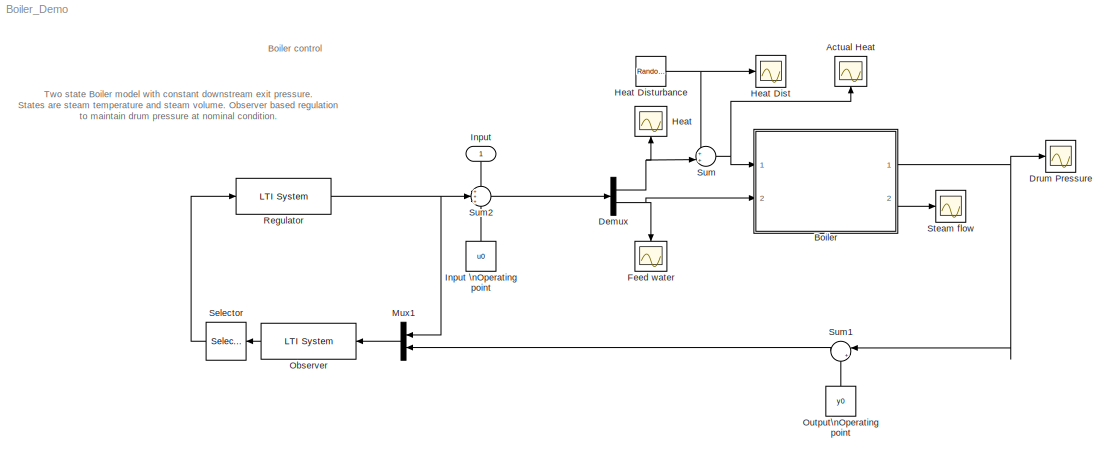
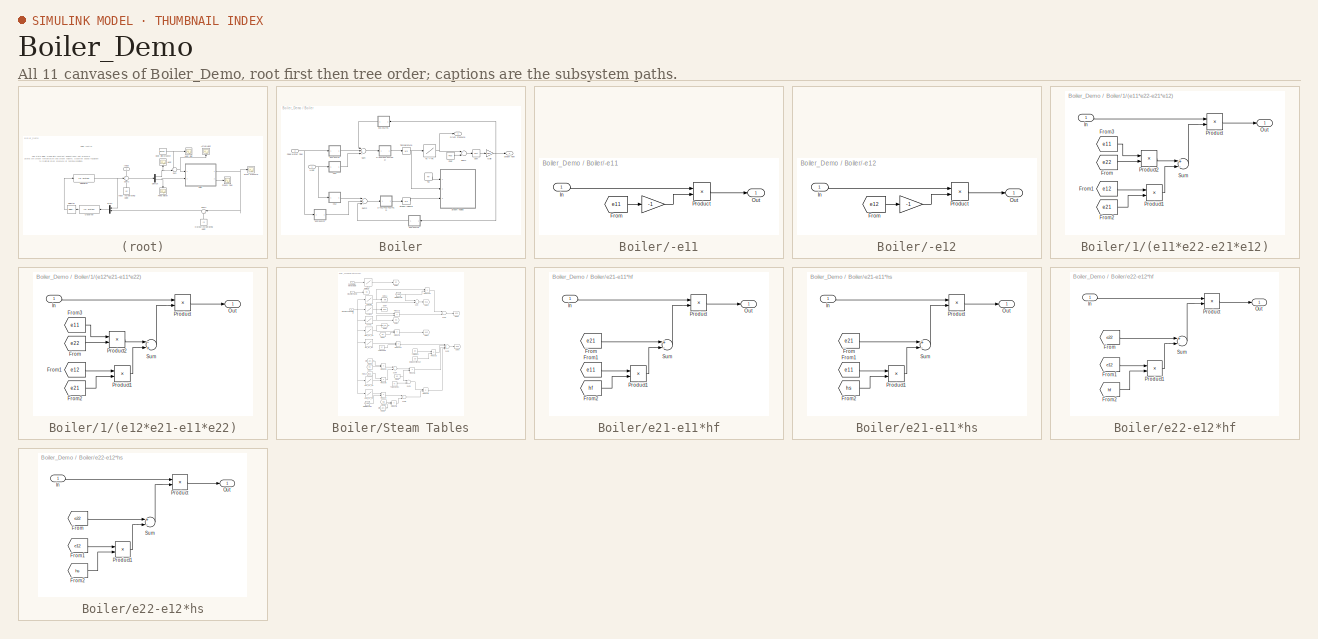
[diagram: thumbnail index - all 11 canvases of the model, root first then tree order]
MODEL Boiler_Demo
KIND model
CONFIG PreLoadFcn = u0 = zeros(2,1);\ny0 = zeros(1,1);\nK = tf( {0;0}, 1);\nKobsv = ss(eye(2),zeros(2,3),zeros(2,2),zeros(2,3));
BLOCK [Scope] Actual Heat
  DataFormat = StructureWithTime
  LimitDataPoints = off
  NumInputPorts = 1
  Ports = [1]
  SaveName = ActualHeat
  SaveToWorkspace = on
  TimeRange = 4000
  YMax = 240800
  YMin = 240200
  ZoomMode = yonly
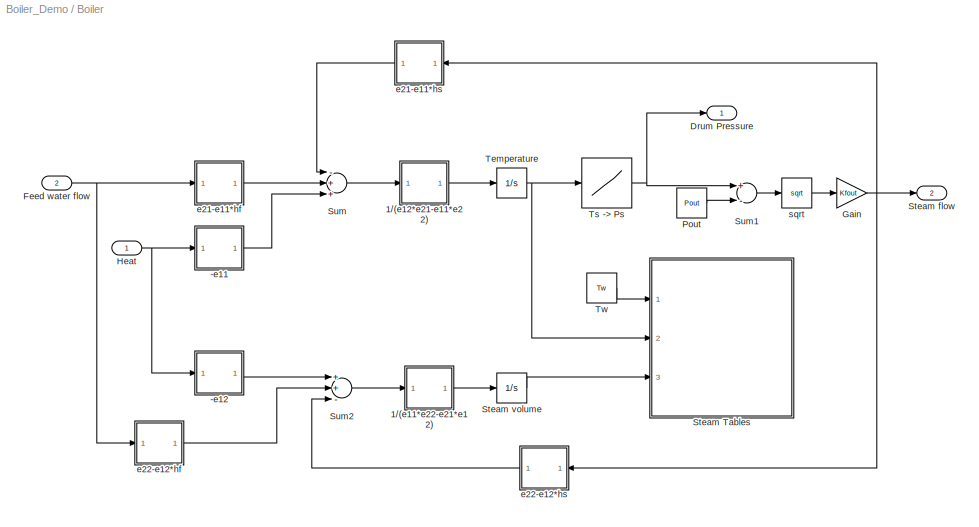
BLOCK [SubSystem] Boiler
  MinAlgLoopOccurrences = off
  Ports = [2, 2]
  PropExecContextAcrossSSBoundary = on
  RTWSystemCode = Auto
  TreatAsAtomicUnit = off
BLOCK [SubSystem] Boiler/-e11
  MinAlgLoopOccurrences = off
  Ports = [1, 1]
  PropExecContextAcrossSSBoundary = on
  RTWSystemCode = Auto
  TreatAsAtomicUnit = off
BLOCK [Gain] Boiler/-e11/ 
  Gain = -1
  OutDataTypeMode = Inherit via internal rule
  ParameterDataTypeMode = Inherit via internal rule
  SaturateOnIntegerOverflow = off
BLOCK [From] Boiler/-e11/From
  CloseFcn = tagdialog Close
  DialogController = Simulink.DDGSource
  GotoTag = e11
BLOCK [Inport] Boiler/-e11/In
  IconDisplay = Port number
  LatchInput = off
BLOCK [Outport] Boiler/-e11/Out
  BusOutputAsStruct = off
  IconDisplay = Port number
BLOCK [Product] Boiler/-e11/Product
  InputSameDT = off
  OutDataTypeMode = Inherit via internal rule
  Ports = [2, 1]
  SaturateOnIntegerOverflow = off
BLOCK [SubSystem] Boiler/-e12
  MinAlgLoopOccurrences = off
  Ports = [1, 1]
  PropExecContextAcrossSSBoundary = on
  RTWSystemCode = Auto
  TreatAsAtomicUnit = off
BLOCK [Gain] Boiler/-e12/ 
  Gain = -1
  OutDataTypeMode = Inherit via internal rule
  ParameterDataTypeMode = Inherit via internal rule
  SaturateOnIntegerOverflow = off
BLOCK [From] Boiler/-e12/From
  CloseFcn = tagdialog Close
  DialogController = Simulink.DDGSource
  GotoTag = e12
BLOCK [Inport] Boiler/-e12/In
  IconDisplay = Port number
  LatchInput = off
BLOCK [Outport] Boiler/-e12/Out
  BusOutputAsStruct = off
  IconDisplay = Port number
BLOCK [Product] Boiler/-e12/Product
  InputSameDT = off
  OutDataTypeMode = Inherit via internal rule
  Ports = [2, 1]
  SaturateOnIntegerOverflow = off
BLOCK [SubSystem] Boiler/1//(e11*e22-e21*e12)
  MinAlgLoopOccurrences = off
  Ports = [1, 1]
  PropExecContextAcrossSSBoundary = on
  RTWSystemCode = Auto
  TreatAsAtomicUnit = off
BLOCK [From] Boiler/1//(e11*e22-e21*e12)/From
  CloseFcn = tagdialog Close
  DialogController = Simulink.DDGSource
  GotoTag = e22
BLOCK [From] Boiler/1//(e11*e22-e21*e12)/From1
  CloseFcn = tagdialog Close
  DialogController = Simulink.DDGSource
  GotoTag = e12
BLOCK [From] Boiler/1//(e11*e22-e21*e12)/From2
  CloseFcn = tagdialog Close
  DialogController = Simulink.DDGSource
  GotoTag = e21
BLOCK [From] Boiler/1//(e11*e22-e21*e12)/From3
  CloseFcn = tagdialog Close
  DialogController = Simulink.DDGSource
  GotoTag = e11
BLOCK [Inport] Boiler/1//(e11*e22-e21*e12)/In
  IconDisplay = Port number
  LatchInput = off
BLOCK [Outport] Boiler/1//(e11*e22-e21*e12)/Out
  BusOutputAsStruct = off
  IconDisplay = Port number
BLOCK [Product] Boiler/1//(e11*e22-e21*e12)/Product
  InputSameDT = off
  Inputs = */
  OutDataTypeMode = Inherit via internal rule
  Ports = [2, 1]
  SaturateOnIntegerOverflow = off
BLOCK [Product] Boiler/1//(e11*e22-e21*e12)/Product1
  InputSameDT = off
  OutDataTypeMode = Inherit via internal rule
  Ports = [2, 1]
  SaturateOnIntegerOverflow = off
BLOCK [Product] Boiler/1//(e11*e22-e21*e12)/Product2
  InputSameDT = off
  OutDataTypeMode = Inherit via internal rule
  Ports = [2, 1]
  SaturateOnIntegerOverflow = off
BLOCK [Sum] Boiler/1//(e11*e22-e21*e12)/Sum
  InputSameDT = off
  Inputs = +-
  OutDataTypeMode = Inherit via internal rule
  Ports = [2, 1]
  SaturateOnIntegerOverflow = off
BLOCK [SubSystem] Boiler/1//(e12*e21-e11*e22)
  MinAlgLoopOccurrences = off
  Ports = [1, 1]
  PropExecContextAcrossSSBoundary = on
  RTWSystemCode = Auto
  TreatAsAtomicUnit = off
BLOCK [From] Boiler/1//(e12*e21-e11*e22)/From
  CloseFcn = tagdialog Close
  DialogController = Simulink.DDGSource
  GotoTag = e22
BLOCK [From] Boiler/1//(e12*e21-e11*e22)/From1
  CloseFcn = tagdialog Close
  DialogController = Simulink.DDGSource
  GotoTag = e12
BLOCK [From] Boiler/1//(e12*e21-e11*e22)/From2
  CloseFcn = tagdialog Close
  DialogController = Simulink.DDGSource
  GotoTag = e21
BLOCK [From] Boiler/1//(e12*e21-e11*e22)/From3
  CloseFcn = tagdialog Close
  DialogController = Simulink.DDGSource
  GotoTag = e11
BLOCK [Inport] Boiler/1//(e12*e21-e11*e22)/In
  IconDisplay = Port number
  LatchInput = off
BLOCK [Outport] Boiler/1//(e12*e21-e11*e22)/Out
  BusOutputAsStruct = off
  IconDisplay = Port number
BLOCK [Product] Boiler/1//(e12*e21-e11*e22)/Product
  InputSameDT = off
  Inputs = */
  OutDataTypeMode = Inherit via internal rule
  Ports = [2, 1]
  SaturateOnIntegerOverflow = off
BLOCK [Product] Boiler/1//(e12*e21-e11*e22)/Product1
  InputSameDT = off
  OutDataTypeMode = Inherit via internal rule
  Ports = [2, 1]
  SaturateOnIntegerOverflow = off
BLOCK [Product] Boiler/1//(e12*e21-e11*e22)/Product2
  InputSameDT = off
  OutDataTypeMode = Inherit via internal rule
  Ports = [2, 1]
  SaturateOnIntegerOverflow = off
BLOCK [Sum] Boiler/1//(e12*e21-e11*e22)/Sum
  InputSameDT = off
  Inputs = -+
  OutDataTypeMode = Inherit via internal rule
  Ports = [2, 1]
  SaturateOnIntegerOverflow = off
BLOCK [Outport] Boiler/Drum Pressure
  BusOutputAsStruct = off
  IconDisplay = Port number
  PortDimensions = 1
BLOCK [Inport] Boiler/Feed water flow
  IconDisplay = Port number
  LatchInput = off
  Port = 2
  PortDimensions = 1
BLOCK [Gain] Boiler/Gain
  Gain = Kfout
  OutDataTypeMode = Inherit via internal rule
  ParameterDataTypeMode = Inherit via internal rule
  SaturateOnIntegerOverflow = off
BLOCK [Inport] Boiler/Heat
  IconDisplay = Port number
  LatchInput = off
  PortDimensions = 1
BLOCK [Constant] Boiler/Pout
  Value = Pout
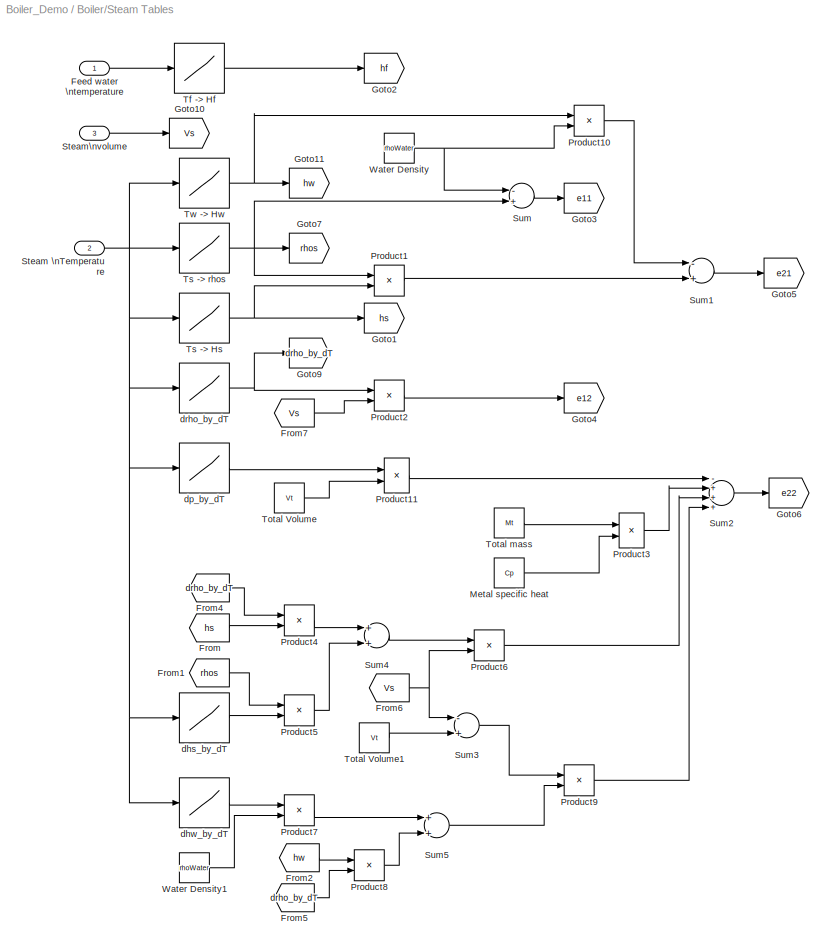
BLOCK [SubSystem] Boiler/Steam Tables
  MinAlgLoopOccurrences = off
  Ports = [3]
  PropExecContextAcrossSSBoundary = on
  RTWSystemCode = Auto
  TreatAsAtomicUnit = off
BLOCK [Inport] Boiler/Steam Tables/Feed water \ntemperature
  IconDisplay = Port number
  LatchInput = off
BLOCK [From] Boiler/Steam Tables/From
  CloseFcn = tagdialog Close
  DialogController = Simulink.DDGSource
  GotoTag = hs
BLOCK [From] Boiler/Steam Tables/From1
  CloseFcn = tagdialog Close
  DialogController = Simulink.DDGSource
  GotoTag = rhos
BLOCK [From] Boiler/Steam Tables/From2
  CloseFcn = tagdialog Close
  DialogController = Simulink.DDGSource
  GotoTag = hw
BLOCK [From] Boiler/Steam Tables/From4
  CloseFcn = tagdialog Close
  DialogController = Simulink.DDGSource
  GotoTag = drho_by_dT
BLOCK [From] Boiler/Steam Tables/From5
  CloseFcn = tagdialog Close
  DialogController = Simulink.DDGSource
  GotoTag = drho_by_dT
BLOCK [From] Boiler/Steam Tables/From6
  CloseFcn = tagdialog Close
  DialogController = Simulink.DDGSource
  GotoTag = Vs
BLOCK [From] Boiler/Steam Tables/From7
  CloseFcn = tagdialog Close
  DialogController = Simulink.DDGSource
  GotoTag = Vs
BLOCK [Goto] Boiler/Steam Tables/Goto1
  DialogController = Simulink.DDGSource
  GotoTag = hs
  TagVisibility = global
BLOCK [Goto] Boiler/Steam Tables/Goto10
  DialogController = Simulink.DDGSource
  GotoTag = Vs
  TagVisibility = global
BLOCK [Goto] Boiler/Steam Tables/Goto11
  DialogController = Simulink.DDGSource
  GotoTag = hw
  TagVisibility = global
BLOCK [Goto] Boiler/Steam Tables/Goto2
  DialogController = Simulink.DDGSource
  GotoTag = hf
  TagVisibility = global
BLOCK [Goto] Boiler/Steam Tables/Goto3
  DialogController = Simulink.DDGSource
  GotoTag = e11
  TagVisibility = global
BLOCK [Goto] Boiler/Steam Tables/Goto4
  DialogController = Simulink.DDGSource
  GotoTag = e12
  TagVisibility = global
BLOCK [Goto] Boiler/Steam Tables/Goto5
  DialogController = Simulink.DDGSource
  GotoTag = e21
  TagVisibility = global
BLOCK [Goto] Boiler/Steam Tables/Goto6
  DialogController = Simulink.DDGSource
  GotoTag = e22
  TagVisibility = global
BLOCK [Goto] Boiler/Steam Tables/Goto7
  DialogController = Simulink.DDGSource
  GotoTag = rhos
  TagVisibility = global
BLOCK [Goto] Boiler/Steam Tables/Goto9
  DialogController = Simulink.DDGSource
  GotoTag = drho_by_dT
  TagVisibility = global
BLOCK [Constant] Boiler/Steam Tables/Metal specific heat
  Value = Cp
BLOCK [Product] Boiler/Steam Tables/Product1
  InputSameDT = off
  OutDataTypeMode = Inherit via internal rule
  Ports = [2, 1]
  SaturateOnIntegerOverflow = off
BLOCK [Product] Boiler/Steam Tables/Product10
  InputSameDT = off
  OutDataTypeMode = Inherit via internal rule
  Ports = [2, 1]
  SaturateOnIntegerOverflow = off
BLOCK [Product] Boiler/Steam Tables/Product11
  InputSameDT = off
  OutDataTypeMode = Inherit via internal rule
  Ports = [2, 1]
  SaturateOnIntegerOverflow = off
BLOCK [Product] Boiler/Steam Tables/Product2
  InputSameDT = off
  OutDataTypeMode = Inherit via internal rule
  Ports = [2, 1]
  SaturateOnIntegerOverflow = off
BLOCK [Product] Boiler/Steam Tables/Product3
  InputSameDT = off
  OutDataTypeMode = Inherit via internal rule
  Ports = [2, 1]
  SaturateOnIntegerOverflow = off
BLOCK [Product] Boiler/Steam Tables/Product4
  InputSameDT = off
  OutDataTypeMode = Inherit via internal rule
  Ports = [2, 1]
  SaturateOnIntegerOverflow = off
BLOCK [Product] Boiler/Steam Tables/Product5
  InputSameDT = off
  OutDataTypeMode = Inherit via internal rule
  Ports = [2, 1]
  SaturateOnIntegerOverflow = off
BLOCK [Product] Boiler/Steam Tables/Product6
  InputSameDT = off
  OutDataTypeMode = Inherit via internal rule
  Ports = [2, 1]
  SaturateOnIntegerOverflow = off
BLOCK [Product] Boiler/Steam Tables/Product7
  InputSameDT = off
  OutDataTypeMode = Inherit via internal rule
  Ports = [2, 1]
  SaturateOnIntegerOverflow = off
BLOCK [Product] Boiler/Steam Tables/Product8
  InputSameDT = off
  OutDataTypeMode = Inherit via internal rule
  Ports = [2, 1]
  SaturateOnIntegerOverflow = off
BLOCK [Product] Boiler/Steam Tables/Product9
  InputSameDT = off
  OutDataTypeMode = Inherit via internal rule
  Ports = [2, 1]
  SaturateOnIntegerOverflow = off
BLOCK [Inport] Boiler/Steam Tables/Steam \nTemperature
  IconDisplay = Port number
  LatchInput = off
  Port = 2
BLOCK [Inport] Boiler/Steam Tables/Steam\nvolume
  IconDisplay = Port number
  LatchInput = off
  Port = 3
BLOCK [Sum] Boiler/Steam Tables/Sum
  InputSameDT = off
  Inputs = -+
  OutDataTypeMode = Inherit via internal rule
  Ports = [2, 1]
  SaturateOnIntegerOverflow = off
BLOCK [Sum] Boiler/Steam Tables/Sum1
  InputSameDT = off
  Inputs = -+
  OutDataTypeMode = Inherit via internal rule
  Ports = [2, 1]
  SaturateOnIntegerOverflow = off
BLOCK [Sum] Boiler/Steam Tables/Sum2
  InputSameDT = off
  Inputs = -+++
  OutDataTypeMode = Inherit via internal rule
  Ports = [4, 1]
  SaturateOnIntegerOverflow = off
BLOCK [Sum] Boiler/Steam Tables/Sum3
  InputSameDT = off
  Inputs = -+
  OutDataTypeMode = Inherit via internal rule
  Ports = [2, 1]
  SaturateOnIntegerOverflow = off
BLOCK [Sum] Boiler/Steam Tables/Sum4
  InputSameDT = off
  OutDataTypeMode = Inherit via internal rule
  Ports = [2, 1]
  SaturateOnIntegerOverflow = off
BLOCK [Sum] Boiler/Steam Tables/Sum5
  InputSameDT = off
  OutDataTypeMode = Inherit via internal rule
  Ports = [2, 1]
  SaturateOnIntegerOverflow = off
BLOCK [Lookup] Boiler/Steam Tables/Tf -> Hf
  DialogController = Simulink.DDGSource
  InputValues = SatSteam.Temperature
  OutputValues = SatSteam.EnthalpyLiquid
  SaturateOnIntegerOverflow = off
BLOCK [Constant] Boiler/Steam Tables/Total Volume
  Value = Vt
BLOCK [Constant] Boiler/Steam Tables/Total Volume1
  Value = Vt
BLOCK [Constant] Boiler/Steam Tables/Total mass
  Value = Mt
BLOCK [Lookup] Boiler/Steam Tables/Ts -> Hs
  DialogController = Simulink.DDGSource
  InputValues = SatSteam.Temperature
  OutputValues = SatSteam.EnthalpySteam
  SaturateOnIntegerOverflow = off
BLOCK [Lookup] Boiler/Steam Tables/Ts -> rhos
  DialogController = Simulink.DDGSource
  InputValues = SatSteam.Temperature
  OutputValues = SatSteam.Density
  SaturateOnIntegerOverflow = off
BLOCK [Lookup] Boiler/Steam Tables/Tw -> Hw
  DialogController = Simulink.DDGSource
  InputValues = SatSteam.Temperature
  OutputValues = SatSteam.EnthalpyLiquid
  SaturateOnIntegerOverflow = off
BLOCK [Constant] Boiler/Steam Tables/Water Density
  Value = rhoWater
BLOCK [Constant] Boiler/Steam Tables/Water Density1
  Value = rhoWater
BLOCK [Lookup] Boiler/Steam Tables/dhs_by_dT
  DialogController = Simulink.DDGSource
  InputValues = SatSteam.Temperature(2:end)
  OutputValues = SatSteam.dhs_by_dT
  SaturateOnIntegerOverflow = off
BLOCK [Lookup] Boiler/Steam Tables/dhw_by_dT
  DialogController = Simulink.DDGSource
  InputValues = SatSteam.Temperature(2:end)
  OutputValues = SatSteam.dhw_by_dp
  SaturateOnIntegerOverflow = off
BLOCK [Lookup] Boiler/Steam Tables/dp_by_dT
  DialogController = Simulink.DDGSource
  InputValues = SatSteam.Temperature(2:end)
  OutputValues = SatSteam.dp_by_dT
  SaturateOnIntegerOverflow = off
BLOCK [Lookup] Boiler/Steam Tables/drho_by_dT
  DialogController = Simulink.DDGSource
  InputValues = SatSteam.Temperature(2:end)
  OutputValues = SatSteam.drho_by_dT
  SaturateOnIntegerOverflow = off
BLOCK [Outport] Boiler/Steam flow
  BusOutputAsStruct = off
  IconDisplay = Port number
  Port = 2
  PortDimensions = 1
BLOCK [Integrator] Boiler/Steam volume
  InitialCondition = 0.7*Vt
  LimitOutput = on
  LowerSaturationLimit = 0
  Ports = [1, 1]
BLOCK [Sum] Boiler/Sum
  InputSameDT = off
  Inputs = -++
  OutDataTypeMode = Inherit via internal rule
  Ports = [3, 1]
  SaturateOnIntegerOverflow = off
BLOCK [Sum] Boiler/Sum1
  InputSameDT = off
  Inputs = +-
  OutDataTypeMode = Inherit via internal rule
  Ports = [2, 1]
  SaturateOnIntegerOverflow = off
BLOCK [Sum] Boiler/Sum2
  InputSameDT = off
  Inputs = ++-
  OutDataTypeMode = Inherit via internal rule
  Ports = [3, 1]
  SaturateOnIntegerOverflow = off
BLOCK [Integrator] Boiler/Temperature
  InitialCondition = T0
  LimitOutput = on
  LowerSaturationLimit = Tmin
  Ports = [1, 1]
BLOCK [Lookup] Boiler/Ts -> Ps
  DialogController = Simulink.DDGSource
  InputValues = SatSteam.Temperature
  OutputValues = SatSteam.Pressure
  SaturateOnIntegerOverflow = off
BLOCK [Constant] Boiler/Tw
  Value = Tw
BLOCK [SubSystem] Boiler/e21-e11*hf
  MinAlgLoopOccurrences = off
  Ports = [1, 1]
  PropExecContextAcrossSSBoundary = on
  RTWSystemCode = Auto
  TreatAsAtomicUnit = off
BLOCK [From] Boiler/e21-e11*hf/From
  CloseFcn = tagdialog Close
  DialogController = Simulink.DDGSource
  GotoTag = e21
BLOCK [From] Boiler/e21-e11*hf/From1
  CloseFcn = tagdialog Close
  DialogController = Simulink.DDGSource
  GotoTag = e11
BLOCK [From] Boiler/e21-e11*hf/From2
  CloseFcn = tagdialog Close
  DialogController = Simulink.DDGSource
  GotoTag = hf
BLOCK [Inport] Boiler/e21-e11*hf/In
  IconDisplay = Port number
  LatchInput = off
BLOCK [Outport] Boiler/e21-e11*hf/Out
  BusOutputAsStruct = off
  IconDisplay = Port number
BLOCK [Product] Boiler/e21-e11*hf/Product
  InputSameDT = off
  OutDataTypeMode = Inherit via internal rule
  Ports = [2, 1]
  SaturateOnIntegerOverflow = off
BLOCK [Product] Boiler/e21-e11*hf/Product1
  InputSameDT = off
  OutDataTypeMode = Inherit via internal rule
  Ports = [2, 1]
  SaturateOnIntegerOverflow = off
BLOCK [Sum] Boiler/e21-e11*hf/Sum
  InputSameDT = off
  Inputs = +-
  OutDataTypeMode = Inherit via internal rule
  Ports = [2, 1]
  SaturateOnIntegerOverflow = off
BLOCK [SubSystem] Boiler/e21-e11*hs
  MinAlgLoopOccurrences = off
  Ports = [1, 1]
  PropExecContextAcrossSSBoundary = on
  RTWSystemCode = Auto
  TreatAsAtomicUnit = off
BLOCK [From] Boiler/e21-e11*hs/From
  CloseFcn = tagdialog Close
  DialogController = Simulink.DDGSource
  GotoTag = e21
BLOCK [From] Boiler/e21-e11*hs/From1
  CloseFcn = tagdialog Close
  DialogController = Simulink.DDGSource
  GotoTag = e11
BLOCK [From] Boiler/e21-e11*hs/From2
  CloseFcn = tagdialog Close
  DialogController = Simulink.DDGSource
  GotoTag = hs
BLOCK [Inport] Boiler/e21-e11*hs/In
  IconDisplay = Port number
  LatchInput = off
BLOCK [Outport] Boiler/e21-e11*hs/Out
  BusOutputAsStruct = off
  IconDisplay = Port number
BLOCK [Product] Boiler/e21-e11*hs/Product
  InputSameDT = off
  OutDataTypeMode = Inherit via internal rule
  Ports = [2, 1]
  SaturateOnIntegerOverflow = off
BLOCK [Product] Boiler/e21-e11*hs/Product1
  InputSameDT = off
  OutDataTypeMode = Inherit via internal rule
  Ports = [2, 1]
  SaturateOnIntegerOverflow = off
BLOCK [Sum] Boiler/e21-e11*hs/Sum
  InputSameDT = off
  Inputs = +-
  OutDataTypeMode = Inherit via internal rule
  Ports = [2, 1]
  SaturateOnIntegerOverflow = off
BLOCK [SubSystem] Boiler/e22-e12*hf
  MinAlgLoopOccurrences = off
  Ports = [1, 1]
  PropExecContextAcrossSSBoundary = on
  RTWSystemCode = Auto
  TreatAsAtomicUnit = off
BLOCK [From] Boiler/e22-e12*hf/From
  CloseFcn = tagdialog Close
  DialogController = Simulink.DDGSource
  GotoTag = e22
BLOCK [From] Boiler/e22-e12*hf/From1
  CloseFcn = tagdialog Close
  DialogController = Simulink.DDGSource
  GotoTag = e12
BLOCK [From] Boiler/e22-e12*hf/From2
  CloseFcn = tagdialog Close
  DialogController = Simulink.DDGSource
  GotoTag = hf
BLOCK [Inport] Boiler/e22-e12*hf/In
  IconDisplay = Port number
  LatchInput = off
BLOCK [Outport] Boiler/e22-e12*hf/Out
  BusOutputAsStruct = off
  IconDisplay = Port number
BLOCK [Product] Boiler/e22-e12*hf/Product
  InputSameDT = off
  OutDataTypeMode = Inherit via internal rule
  Ports = [2, 1]
  SaturateOnIntegerOverflow = off
BLOCK [Product] Boiler/e22-e12*hf/Product1
  InputSameDT = off
  OutDataTypeMode = Inherit via internal rule
  Ports = [2, 1]
  SaturateOnIntegerOverflow = off
BLOCK [Sum] Boiler/e22-e12*hf/Sum
  InputSameDT = off
  Inputs = +-
  OutDataTypeMode = Inherit via internal rule
  Ports = [2, 1]
  SaturateOnIntegerOverflow = off
BLOCK [SubSystem] Boiler/e22-e12*hs
  MinAlgLoopOccurrences = off
  Ports = [1, 1]
  PropExecContextAcrossSSBoundary = on
  RTWSystemCode = Auto
  TreatAsAtomicUnit = off
BLOCK [From] Boiler/e22-e12*hs/From
  CloseFcn = tagdialog Close
  DialogController = Simulink.DDGSource
  GotoTag = e22
BLOCK [From] Boiler/e22-e12*hs/From1
  CloseFcn = tagdialog Close
  DialogController = Simulink.DDGSource
  GotoTag = e12
BLOCK [From] Boiler/e22-e12*hs/From2
  CloseFcn = tagdialog Close
  DialogController = Simulink.DDGSource
  GotoTag = hs
BLOCK [Inport] Boiler/e22-e12*hs/In
  IconDisplay = Port number
  LatchInput = off
BLOCK [Outport] Boiler/e22-e12*hs/Out
  BusOutputAsStruct = off
  IconDisplay = Port number
BLOCK [Product] Boiler/e22-e12*hs/Product
  InputSameDT = off
  OutDataTypeMode = Inherit via internal rule
  Ports = [2, 1]
  SaturateOnIntegerOverflow = off
BLOCK [Product] Boiler/e22-e12*hs/Product1
  InputSameDT = off
  OutDataTypeMode = Inherit via internal rule
  Ports = [2, 1]
  SaturateOnIntegerOverflow = off
BLOCK [Sum] Boiler/e22-e12*hs/Sum
  InputSameDT = off
  Inputs = +-
  OutDataTypeMode = Inherit via internal rule
  Ports = [2, 1]
  SaturateOnIntegerOverflow = off
BLOCK [Math] Boiler/sqrt
  Operator = sqrt
  Ports = [1, 1]
BLOCK [Demux] Demux
  DisplayOption = bar
  Outputs = 2
  Ports = [1, 2]
BLOCK [Scope] Drum Pressure
  DataFormat = StructureWithTime
  LimitDataPoints = off
  NumInputPorts = 1
  Ports = [1]
  SaveName = DrumPressure
  SaveToWorkspace = on
  TimeRange = 8000
  YMax = 1015
  YMin = 990
BLOCK [Scope] Feed water
  DataFormat = StructureWithTime
  LimitDataPoints = off
  NumInputPorts = 1
  Ports = [1]
  SaveName = FeedWater
  SaveToWorkspace = on
  TimeRange = 8000
  YMax = 106
  YMin = 92
BLOCK [Scope] Heat
  DataFormat = StructureWithTime
  NumInputPorts = 1
  Ports = [1]
  SaveName = Heat
  SaveToWorkspace = on
  TimeRange = 8000
  YMax = 241200
  YMin = 240950
  ZoomMode = yonly
BLOCK [Scope] Heat Dist
  DataFormat = StructureWithTime
  NumInputPorts = 1
  Ports = [1]
  SaveName = HeatDist
  SaveToWorkspace = on
  TimeRange = 4000
  YMax = 200000
  YMin = -150000
  ZoomMode = xonly
BLOCK [RandomNumber] Heat Disturbance
  SampleTime = 0
  Variance = HeatDistAmplitude^2
BLOCK [Inport] Input
  IconDisplay = Port number
  LatchInput = off
  PortDimensions = 2
BLOCK [Constant] Input \nOperating point
  Value = u0
BLOCK [Mux] Mux1
  DisplayOption = bar
  Inputs = 2
  Ports = [2, 1]
BLOCK [Reference] Observer  REF=cstblocks/LTI System
  IC = 0
  Ports = [1, 1]
  ShowPortLabels = on
  SourceBlock = cstblocks/LTI System
  SourceType = LTI Block
  sys = Kobsv
BLOCK [Constant] Output\nOperating point
  Value = y0
BLOCK [Reference] Regulator  REF=cstblocks/LTI System
  IC = []
  Ports = [1, 1]
  ShowPortLabels = on
  SourceBlock = cstblocks/LTI System
  SourceType = LTI Block
  sys = -K
BLOCK [Selector] Selector
  Elements = [2]
  InputPortWidth = 2
  Ports = [1, 1]
BLOCK [Scope] Steam flow
  DataFormat = StructureWithTime
  NumInputPorts = 1
  Ports = [1]
  SaveName = ScopeData1
  TimeRange = 4000
  YMax = 100.4
  YMin = 99.9
BLOCK [Sum] Sum
  IconShape = round
  InputSameDT = off
  Inputs = ++|
  OutDataTypeMode = Inherit via internal rule
  Ports = [2, 1]
  SaturateOnIntegerOverflow = off
BLOCK [Sum] Sum1
  IconShape = round
  InputSameDT = off
  Inputs = |+-
  OutDataTypeMode = Inherit via internal rule
  Ports = [2, 1]
  SaturateOnIntegerOverflow = off
BLOCK [Sum] Sum2
  IconShape = round
  InputSameDT = off
  Inputs = +++
  OutDataTypeMode = Inherit via internal rule
  Ports = [3, 1]
  SaturateOnIntegerOverflow = off
ANNOTATION (root): Boiler control
ANNOTATION (root): Two state Boiler model with constant downstream exit pressure. \nStates are steam temperature and steam volume. Observer based regulation\nto maintain drum pressure at nominal condition.
LINE Boiler/-e11/ :1 -> Boiler/-e11/Product:2
LINE Boiler/-e11/From:1 -> Boiler/-e11/ :1
LINE Boiler/-e11/In:1 -> Boiler/-e11/Product:1
LINE Boiler/-e11/Product:1 -> Boiler/-e11/Out:1
LINE Boiler/-e11:1 -> Boiler/Sum:3
LINE Boiler/-e12/ :1 -> Boiler/-e12/Product:2
LINE Boiler/-e12/From:1 -> Boiler/-e12/ :1
LINE Boiler/-e12/In:1 -> Boiler/-e12/Product:1
LINE Boiler/-e12/Product:1 -> Boiler/-e12/Out:1
LINE Boiler/-e12:1 -> Boiler/Sum2:1
LINE Boiler/1//(e11*e22-e21*e12)/From1:1 -> Boiler/1//(e11*e22-e21*e12)/Product1:1
LINE Boiler/1//(e11*e22-e21*e12)/From2:1 -> Boiler/1//(e11*e22-e21*e12)/Product1:2
LINE Boiler/1//(e11*e22-e21*e12)/From3:1 -> Boiler/1//(e11*e22-e21*e12)/Product2:1
LINE Boiler/1//(e11*e22-e21*e12)/From:1 -> Boiler/1//(e11*e22-e21*e12)/Product2:2
LINE Boiler/1//(e11*e22-e21*e12)/In:1 -> Boiler/1//(e11*e22-e21*e12)/Product:1
LINE Boiler/1//(e11*e22-e21*e12)/Product1:1 -> Boiler/1//(e11*e22-e21*e12)/Sum:2
LINE Boiler/1//(e11*e22-e21*e12)/Product2:1 -> Boiler/1//(e11*e22-e21*e12)/Sum:1
LINE Boiler/1//(e11*e22-e21*e12)/Product:1 -> Boiler/1//(e11*e22-e21*e12)/Out:1
LINE Boiler/1//(e11*e22-e21*e12)/Sum:1 -> Boiler/1//(e11*e22-e21*e12)/Product:2
LINE Boiler/1//(e11*e22-e21*e12):1 -> Boiler/Steam volume:1
LINE Boiler/1//(e12*e21-e11*e22)/From1:1 -> Boiler/1//(e12*e21-e11*e22)/Product1:1
LINE Boiler/1//(e12*e21-e11*e22)/From2:1 -> Boiler/1//(e12*e21-e11*e22)/Product1:2
LINE Boiler/1//(e12*e21-e11*e22)/From3:1 -> Boiler/1//(e12*e21-e11*e22)/Product2:1
LINE Boiler/1//(e12*e21-e11*e22)/From:1 -> Boiler/1//(e12*e21-e11*e22)/Product2:2
LINE Boiler/1//(e12*e21-e11*e22)/In:1 -> Boiler/1//(e12*e21-e11*e22)/Product:1
LINE Boiler/1//(e12*e21-e11*e22)/Product1:1 -> Boiler/1//(e12*e21-e11*e22)/Sum:2
LINE Boiler/1//(e12*e21-e11*e22)/Product2:1 -> Boiler/1//(e12*e21-e11*e22)/Sum:1
LINE Boiler/1//(e12*e21-e11*e22)/Product:1 -> Boiler/1//(e12*e21-e11*e22)/Out:1
LINE Boiler/1//(e12*e21-e11*e22)/Sum:1 -> Boiler/1//(e12*e21-e11*e22)/Product:2
LINE Boiler/1//(e12*e21-e11*e22):1 -> Boiler/Temperature:1
NET Boiler/Feed water flow:1 -> Boiler/e21-e11*hf:1, Boiler/e22-e12*hf:1
NET Boiler/Gain:1 -> Boiler/Steam flow:1, Boiler/e21-e11*hs:1, Boiler/e22-e12*hs:1
NET Boiler/Heat:1 -> Boiler/-e11:1, Boiler/-e12:1
LINE Boiler/Pout:1 -> Boiler/Sum1:2
LINE Boiler/Steam Tables/Feed water \ntemperature:1 -> Boiler/Steam Tables/Tf -> Hf:1
LINE Boiler/Steam Tables/From1:1 -> Boiler/Steam Tables/Product5:1
LINE Boiler/Steam Tables/From2:1 -> Boiler/Steam Tables/Product8:1
LINE Boiler/Steam Tables/From4:1 -> Boiler/Steam Tables/Product4:1
LINE Boiler/Steam Tables/From5:1 -> Boiler/Steam Tables/Product8:2
NET Boiler/Steam Tables/From6:1 -> Boiler/Steam Tables/Product6:2, Boiler/Steam Tables/Sum3:1
LINE Boiler/Steam Tables/From7:1 -> Boiler/Steam Tables/Product2:2
LINE Boiler/Steam Tables/From:1 -> Boiler/Steam Tables/Product4:2
LINE Boiler/Steam Tables/Metal specific heat:1 -> Boiler/Steam Tables/Product3:2
LINE Boiler/Steam Tables/Product10:1 -> Boiler/Steam Tables/Sum1:1
LINE Boiler/Steam Tables/Product11:1 -> Boiler/Steam Tables/Sum2:1
LINE Boiler/Steam Tables/Product1:1 -> Boiler/Steam Tables/Sum1:2
LINE Boiler/Steam Tables/Product2:1 -> Boiler/Steam Tables/Goto4:1
LINE Boiler/Steam Tables/Product3:1 -> Boiler/Steam Tables/Sum2:2
LINE Boiler/Steam Tables/Product4:1 -> Boiler/Steam Tables/Sum4:1
LINE Boiler/Steam Tables/Product5:1 -> Boiler/Steam Tables/Sum4:2
LINE Boiler/Steam Tables/Product6:1 -> Boiler/Steam Tables/Sum2:3
LINE Boiler/Steam Tables/Product7:1 -> Boiler/Steam Tables/Sum5:1
LINE Boiler/Steam Tables/Product8:1 -> Boiler/Steam Tables/Sum5:2
LINE Boiler/Steam Tables/Product9:1 -> Boiler/Steam Tables/Sum2:4
NET Boiler/Steam Tables/Steam \nTemperature:1 -> Boiler/Steam Tables/Ts -> Hs:1, Boiler/Steam Tables/Ts -> rhos:1, Boiler/Steam Tables/Tw -> Hw:1, Boiler/Steam Tables/dhs_by_dT:1, Boiler/Steam Tables/dhw_by_dT:1, Boiler/Steam Tables/dp_by_dT:1, Boiler/Steam Tables/drho_by_dT:1
LINE Boiler/Steam Tables/Steam\nvolume:1 -> Boiler/Steam Tables/Goto10:1
LINE Boiler/Steam Tables/Sum1:1 -> Boiler/Steam Tables/Goto5:1
LINE Boiler/Steam Tables/Sum2:1 -> Boiler/Steam Tables/Goto6:1
LINE Boiler/Steam Tables/Sum3:1 -> Boiler/Steam Tables/Product9:1
LINE Boiler/Steam Tables/Sum4:1 -> Boiler/Steam Tables/Product6:1
LINE Boiler/Steam Tables/Sum5:1 -> Boiler/Steam Tables/Product9:2
LINE Boiler/Steam Tables/Sum:1 -> Boiler/Steam Tables/Goto3:1
LINE Boiler/Steam Tables/Tf -> Hf:1 -> Boiler/Steam Tables/Goto2:1
LINE Boiler/Steam Tables/Total Volume1:1 -> Boiler/Steam Tables/Sum3:2
LINE Boiler/Steam Tables/Total Volume:1 -> Boiler/Steam Tables/Product11:2
LINE Boiler/Steam Tables/Total mass:1 -> Boiler/Steam Tables/Product3:1
NET Boiler/Steam Tables/Ts -> Hs:1 -> Boiler/Steam Tables/Goto1:1, Boiler/Steam Tables/Product1:2
NET Boiler/Steam Tables/Ts -> rhos:1 -> Boiler/Steam Tables/Goto7:1, Boiler/Steam Tables/Product1:1, Boiler/Steam Tables/Sum:2
NET Boiler/Steam Tables/Tw -> Hw:1 -> Boiler/Steam Tables/Goto11:1, Boiler/Steam Tables/Product10:1
LINE Boiler/Steam Tables/Water Density1:1 -> Boiler/Steam Tables/Product7:2
NET Boiler/Steam Tables/Water Density:1 -> Boiler/Steam Tables/Product10:2, Boiler/Steam Tables/Sum:1
LINE Boiler/Steam Tables/dhs_by_dT:1 -> Boiler/Steam Tables/Product5:2
LINE Boiler/Steam Tables/dhw_by_dT:1 -> Boiler/Steam Tables/Product7:1
LINE Boiler/Steam Tables/dp_by_dT:1 -> Boiler/Steam Tables/Product11:1
NET Boiler/Steam Tables/drho_by_dT:1 -> Boiler/Steam Tables/Goto9:1, Boiler/Steam Tables/Product2:1
LINE Boiler/Steam volume:1 -> Boiler/Steam Tables:3
LINE Boiler/Sum1:1 -> Boiler/sqrt:1
LINE Boiler/Sum2:1 -> Boiler/1//(e11*e22-e21*e12):1
LINE Boiler/Sum:1 -> Boiler/1//(e12*e21-e11*e22):1
NET Boiler/Temperature:1 -> Boiler/Steam Tables:2, Boiler/Ts -> Ps:1
NET Boiler/Ts -> Ps:1 -> Boiler/Drum Pressure:1, Boiler/Sum1:1
LINE Boiler/Tw:1 -> Boiler/Steam Tables:1
LINE Boiler/e21-e11*hf/From1:1 -> Boiler/e21-e11*hf/Product1:1
LINE Boiler/e21-e11*hf/From2:1 -> Boiler/e21-e11*hf/Product1:2
LINE Boiler/e21-e11*hf/From:1 -> Boiler/e21-e11*hf/Sum:1
LINE Boiler/e21-e11*hf/In:1 -> Boiler/e21-e11*hf/Product:1
LINE Boiler/e21-e11*hf/Product1:1 -> Boiler/e21-e11*hf/Sum:2
LINE Boiler/e21-e11*hf/Product:1 -> Boiler/e21-e11*hf/Out:1
LINE Boiler/e21-e11*hf/Sum:1 -> Boiler/e21-e11*hf/Product:2
LINE Boiler/e21-e11*hf:1 -> Boiler/Sum:2
LINE Boiler/e21-e11*hs/From1:1 -> Boiler/e21-e11*hs/Product1:1
LINE Boiler/e21-e11*hs/From2:1 -> Boiler/e21-e11*hs/Product1:2
LINE Boiler/e21-e11*hs/From:1 -> Boiler/e21-e11*hs/Sum:1
LINE Boiler/e21-e11*hs/In:1 -> Boiler/e21-e11*hs/Product:1
LINE Boiler/e21-e11*hs/Product1:1 -> Boiler/e21-e11*hs/Sum:2
LINE Boiler/e21-e11*hs/Product:1 -> Boiler/e21-e11*hs/Out:1
LINE Boiler/e21-e11*hs/Sum:1 -> Boiler/e21-e11*hs/Product:2
LINE Boiler/e21-e11*hs:1 -> Boiler/Sum:1
LINE Boiler/e22-e12*hf/From1:1 -> Boiler/e22-e12*hf/Product1:1
LINE Boiler/e22-e12*hf/From2:1 -> Boiler/e22-e12*hf/Product1:2
LINE Boiler/e22-e12*hf/From:1 -> Boiler/e22-e12*hf/Sum:1
LINE Boiler/e22-e12*hf/In:1 -> Boiler/e22-e12*hf/Product:1
LINE Boiler/e22-e12*hf/Product1:1 -> Boiler/e22-e12*hf/Sum:2
LINE Boiler/e22-e12*hf/Product:1 -> Boiler/e22-e12*hf/Out:1
LINE Boiler/e22-e12*hf/Sum:1 -> Boiler/e22-e12*hf/Product:2
LINE Boiler/e22-e12*hf:1 -> Boiler/Sum2:2
LINE Boiler/e22-e12*hs/From1:1 -> Boiler/e22-e12*hs/Product1:1
LINE Boiler/e22-e12*hs/From2:1 -> Boiler/e22-e12*hs/Product1:2
LINE Boiler/e22-e12*hs/From:1 -> Boiler/e22-e12*hs/Sum:1
LINE Boiler/e22-e12*hs/In:1 -> Boiler/e22-e12*hs/Product:1
LINE Boiler/e22-e12*hs/Product1:1 -> Boiler/e22-e12*hs/Sum:2
LINE Boiler/e22-e12*hs/Product:1 -> Boiler/e22-e12*hs/Out:1
LINE Boiler/e22-e12*hs/Sum:1 -> Boiler/e22-e12*hs/Product:2
LINE Boiler/e22-e12*hs:1 -> Boiler/Sum2:3
LINE Boiler/sqrt:1 -> Boiler/Gain:1
NET Boiler:1 -> Drum Pressure:1, Sum1:1
LINE Boiler:2 -> Steam flow:1
NET Demux:1 -> Heat:1, Sum:2
NET Demux:2 -> Boiler:2, Feed water:1
NET Heat Disturbance:1 -> Heat Dist:1, Sum:1
LINE Input \nOperating point:1 -> Sum2:3
LINE Input:1 -> Sum2:1
LINE Mux1:1 -> Observer:1
LINE Observer:1 -> Selector:1
LINE Output\nOperating point:1 -> Sum1:2
NET Regulator:1 -> Mux1:1, Sum2:2
LINE Selector:1 -> Regulator:1
LINE Sum1:1 -> Mux1:2
LINE Sum2:1 -> Demux:1
NET Sum:1 -> Actual Heat:1, Boiler:1
note: NET lines group one-source signal fan-out (src -> all destinations, sorted); 1:1 wires keep LINE
